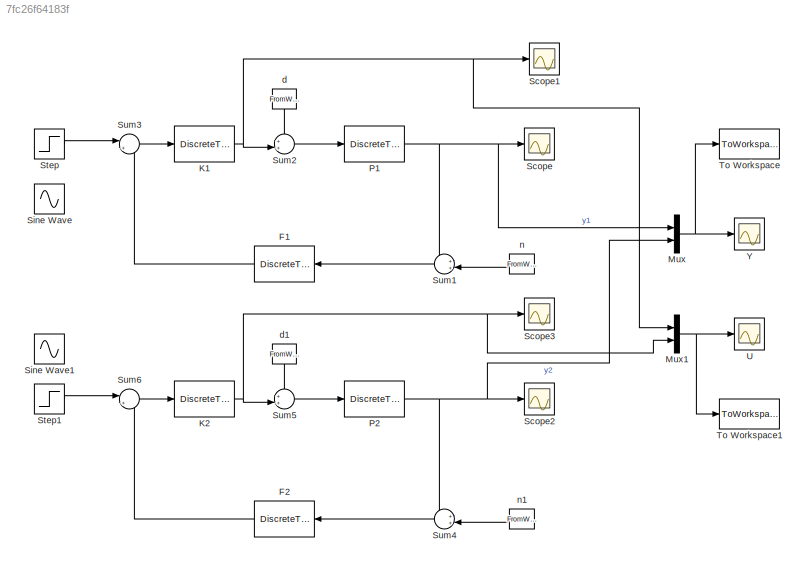
MODEL slx_7fc26f64183f
KIND model
CONFIG AbsTol = auto
CONFIG FixedStep = auto
CONFIG InitFcn = init_simulator
CONFIG MaxStep = auto
CONFIG MinStep = auto
CONFIG RelTol = 1e-3
CONFIG SampleTimeConstraint = Unconstrained
CONFIG Solver = ode45
CONFIG SolverMode = Auto
CONFIG SolverName = ode45
CONFIG StartTime = 0.0
CONFIG StopTime = 1999
BLOCK [DiscreteTransferFcn] F1
  Denominator = F.den{1}
  InputPortMap = u0
  Numerator = F.num{1}
  Ports = [1, 1]
  SampleTime = 1
BLOCK [DiscreteTransferFcn] F2
  Denominator = F.den{1}
  InputPortMap = u0
  Numerator = F.num{1}
  Ports = [1, 1]
  SampleTime = 1
BLOCK [DiscreteTransferFcn] K1
  Denominator = K1.den{1}
  InputPortMap = u0
  Numerator = K1.num{1}
  Ports = [1, 1]
  SampleTime = 1
BLOCK [DiscreteTransferFcn] K2
  Denominator = K2.den{1}
  InputPortMap = u0
  Numerator = K2.num{1}
  Ports = [1, 1]
  SampleTime = 1
BLOCK [Mux] Mux
  DisplayOption = bar
  Inputs = 2
  Ports = [2, 1]
BLOCK [Mux] Mux1
  DisplayOption = bar
  Inputs = 2
  Ports = [2, 1]
BLOCK [DiscreteTransferFcn] P1
  Denominator = P.den{1}
  InputPortMap = u0
  Numerator = P.num{1}
  Ports = [1, 1]
  SampleTime = 1
BLOCK [DiscreteTransferFcn] P2
  Denominator = P.den{1}
  InputPortMap = u0
  Numerator = P.num{1}
  Ports = [1, 1]
  SampleTime = 1
BLOCK [Scope] Scope
  Floating = off
  NumInputPorts = 1
  Ports = [1]
  SampleInput = on
BLOCK [Scope] Scope1
  Floating = off
  NumInputPorts = 1
  Ports = [1]
  SaveName = ScopeData1
BLOCK [Scope] Scope2
  Floating = off
  NumInputPorts = 1
  Ports = [1]
  SaveName = ScopeData2
BLOCK [Scope] Scope3
  Floating = off
  NumInputPorts = 1
  Ports = [1]
  SaveName = ScopeData3
BLOCK [Sin] Sine Wave
  Amplitude = 200
  Ports = [0, 1]
  SampleTime = 1
  Samples = 500
  SineType = Sample based
BLOCK [Sin] Sine Wave1
  Amplitude = 200
  Ports = [0, 1]
  SampleTime = 1
  Samples = 500
  SineType = Sample based
BLOCK [Step] Step
  After = 200
  SampleTime = 0
  Time = 200
BLOCK [Step] Step1
  After = 200
  SampleTime = 0
  Time = 200
BLOCK [Sum] Sum1
  IconShape = round
  InputSameDT = off
  Inputs = ++|
  OutDataTypeStr = Inherit: Inherit via internal rule
  Ports = [2, 1]
  SaturateOnIntegerOverflow = off
BLOCK [Sum] Sum2
  IconShape = round
  InputSameDT = off
  Inputs = ++|
  OutDataTypeStr = Inherit: Inherit via internal rule
  Ports = [2, 1]
  SaturateOnIntegerOverflow = off
BLOCK [Sum] Sum3
  IconShape = round
  InputSameDT = off
  Inputs = |+-
  OutDataTypeStr = Inherit: Inherit via internal rule
  Ports = [2, 1]
  SaturateOnIntegerOverflow = off
BLOCK [Sum] Sum4
  IconShape = round
  InputSameDT = off
  Inputs = ++|
  OutDataTypeStr = Inherit: Inherit via internal rule
  Ports = [2, 1]
  SaturateOnIntegerOverflow = off
BLOCK [Sum] Sum5
  IconShape = round
  InputSameDT = off
  Inputs = ++|
  OutDataTypeStr = Inherit: Inherit via internal rule
  Ports = [2, 1]
  SaturateOnIntegerOverflow = off
BLOCK [Sum] Sum6
  IconShape = round
  InputSameDT = off
  Inputs = |+-
  OutDataTypeStr = Inherit: Inherit via internal rule
  Ports = [2, 1]
  SaturateOnIntegerOverflow = off
BLOCK [ToWorkspace] To Workspace
  FixptAsFi = on
  MaxDataPoints = inf
  Ports = [1]
  SampleTime = -1
  Save2DSignal = 2-D array (concatenate along first dimension)
  VariableName = y
BLOCK [ToWorkspace] To Workspace1
  FixptAsFi = on
  MaxDataPoints = inf
  Ports = [1]
  SampleTime = -1
  Save2DSignal = 2-D array (concatenate along first dimension)
  VariableName = u
BLOCK [Scope] U
  Floating = off
  LegendLocations = 0.92069     0.88316    0.051245    0.053019
  NumInputPorts = 1
  Ports = [1]
  SaveName = ScopeData4
  ShowLegends = on
BLOCK [Scope] Y
  Floating = off
  LegendLocations = 0.92216     0.88316     0.04978    0.053019
  NumInputPorts = 1
  Ports = [1]
  SaveName = ScopeData5
  ShowLegends = on
BLOCK [FromWorkspace] d
  OutputAfterFinalValue = Holding final value
  SampleTime = 1
  VariableName = [t,D]
  ZeroCross = on
BLOCK [FromWorkspace] d1
  SampleTime = 0
  VariableName = [t,D]
  ZeroCross = on
BLOCK [FromWorkspace] n
  OutputAfterFinalValue = Holding final value
  SampleTime = 1
  VariableName = [t,N]
  ZeroCross = on
BLOCK [FromWorkspace] n1
  SampleTime = 0
  VariableName = [t,N]
  ZeroCross = on
LINE F1:1 -> Sum3:2
LINE F2:1 -> Sum6:2
NET K1:1 -> Mux1:1, Scope1:1, Sum2:2
NET K2:1 -> Mux1:2, Scope3:1, Sum5:2
NET Mux1:1 -> To Workspace1:1, U:1
NET Mux:1 -> To Workspace:1, Y:1
NET P1:1 -> Mux:1, Scope:1, Sum1:1
NET P2:1 -> Mux:2, Scope2:1, Sum4:1
LINE Step1:1 -> Sum6:1
LINE Step:1 -> Sum3:1
LINE Sum1:1 -> F1:1
LINE Sum2:1 -> P1:1
LINE Sum3:1 -> K1:1
LINE Sum4:1 -> F2:1
LINE Sum5:1 -> P2:1
LINE Sum6:1 -> K2:1
LINE d1:1 -> Sum5:1
LINE d:1 -> Sum2:1
LINE n1:1 -> Sum4:2
LINE n:1 -> Sum1:2
note: NET lines group one-source signal fan-out (src -> all destinations, sorted); 1:1 wires keep LINE
